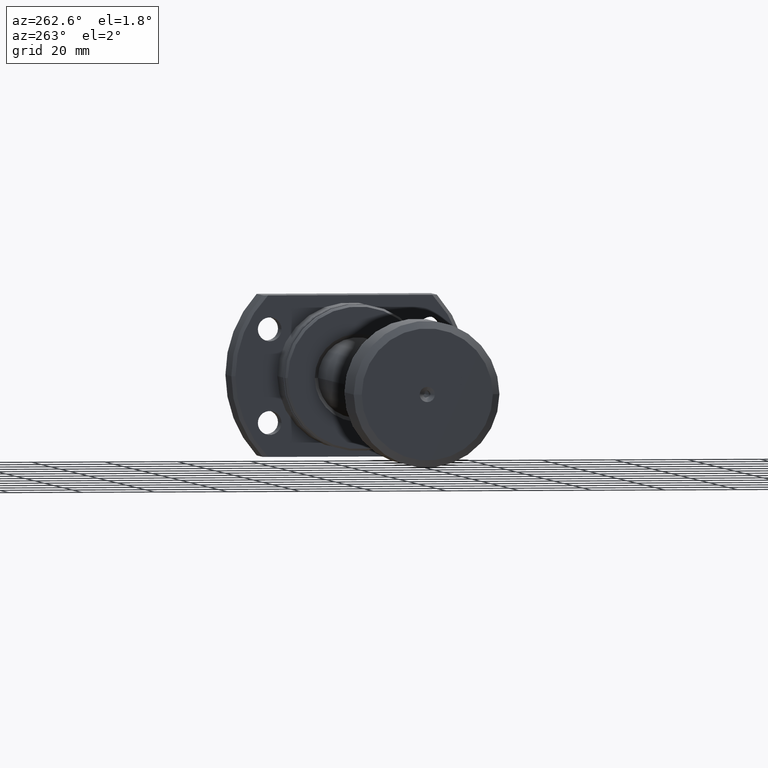
[diagram: clean part render]
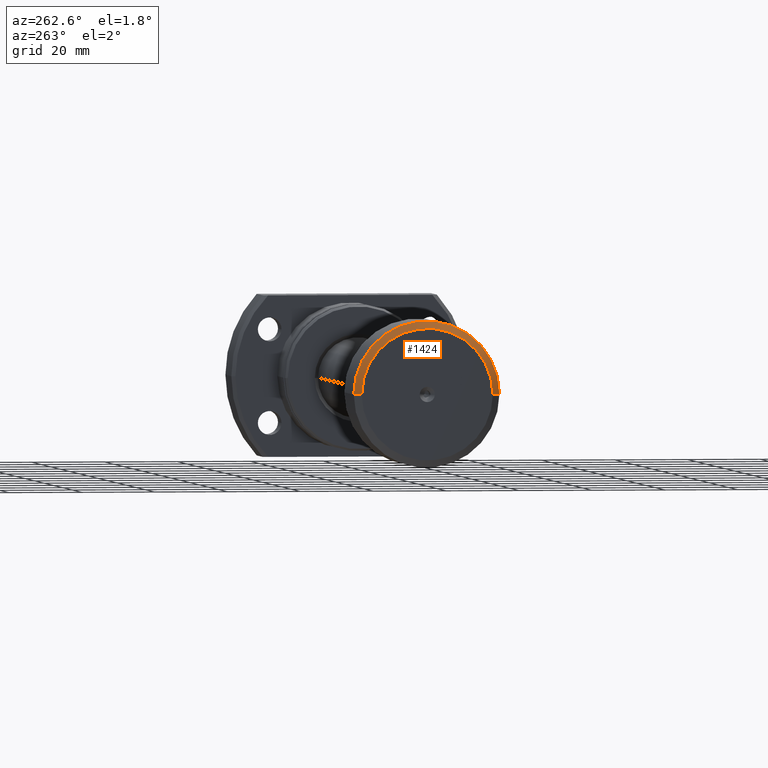
[diagram: same view with one face highlighted and labeled with its STEP entity id]
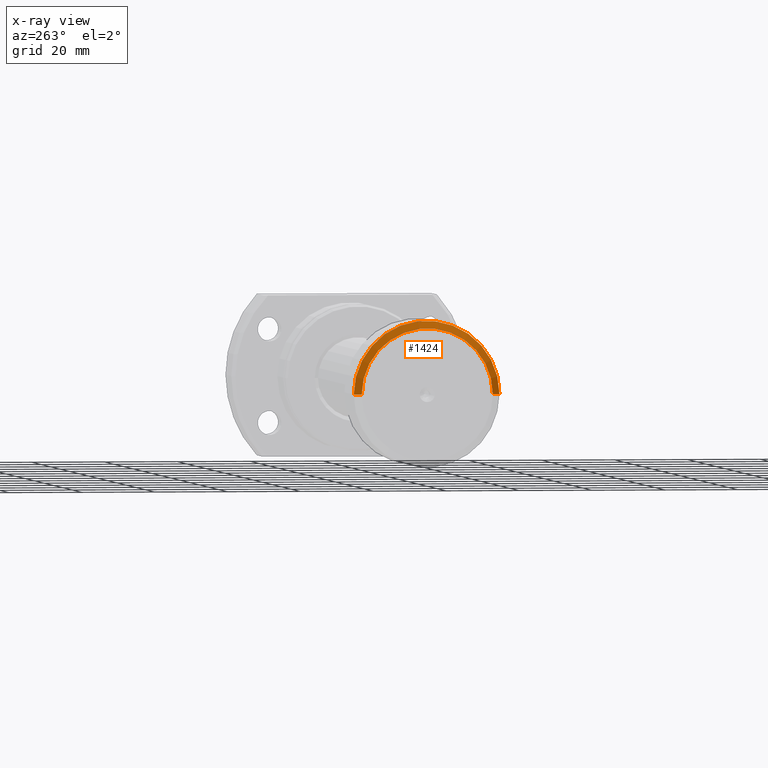
[diagram: x-ray of the same camera — body ghosted, the highlighted face saturated]
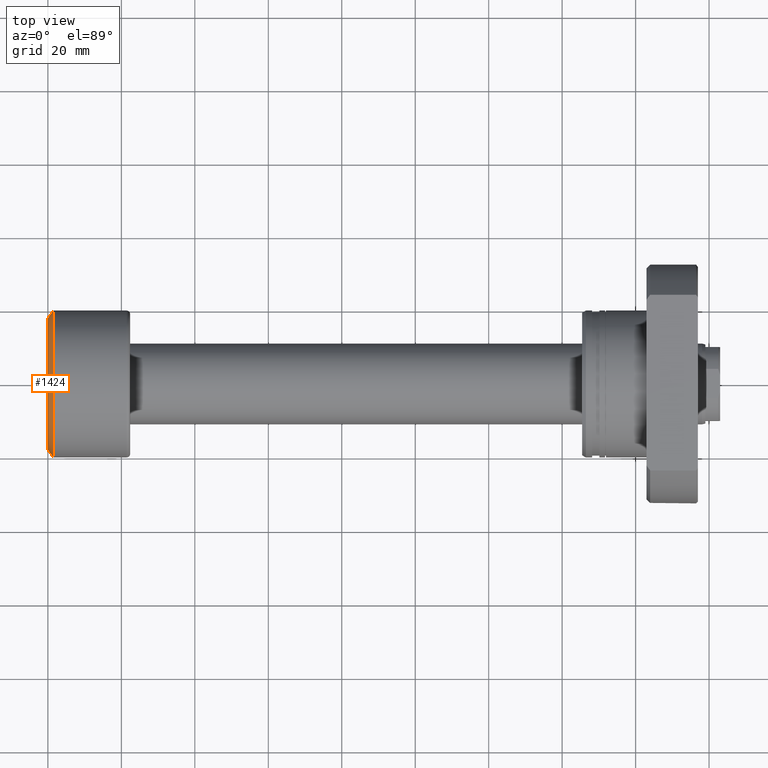
[diagram: same view with one face highlighted and labeled with its STEP entity id]
A machine part, auxiliary view. The second image highlights one B-rep face of the part: STEP entity #1424.
The next image is the same camera in x-ray: the body ghosted, the highlighted face saturated — about 0% of this face is hidden behind the body in this view.
A second angle (top view) of the same face is appended — the face is thin or edge-on in the first view.
In plain terms, the highlighted conical surface has half-angle 53.13 deg.
Its self-contained STEP definition (entity closure, byte-faithful):
#122 = CIRCLE ( 'NONE', #2906, 18.00000000000000355 ) ;
#176 = LINE ( 'NONE', #2869, #3136 ) ;
#244 = EDGE_CURVE ( 'NONE', #1519, #2376, #2145, .T. ) ;
#379 = EDGE_CURVE ( 'NONE', #894, #2419, #122, .T. ) ;
#620 = DIRECTION ( 'NONE',  ( 0.6000000000000005329, -0.7999999999999996003, 9.797174393178821220E-17 ) ) ;
#631 = ORIENTED_EDGE ( 'NONE', *, *, #910, .F. ) ;
#819 = CARTESIAN_POINT ( 'NONE',  ( 1.500000000000002442, 20.00000000000000000, 0.000000000000000000 ) ) ;
#843 = DIRECTION ( 'NONE',  ( 1.084202172485504434E-17, -1.000000000000000000, 0.000000000000000000 ) ) ;
#878 = CARTESIAN_POINT ( 'NONE',  ( 2.011846620492804129E-15, 2.151755106128676308E-32, 0.000000000000000000 ) ) ;
#894 = VERTEX_POINT ( 'NONE', #3130 ) ;
#910 = EDGE_CURVE ( 'NONE', #2419, #2376, #2718, .T. ) ;
#1004 = AXIS2_PLACEMENT_3D ( 'NONE', #2711, #1466, #1245 ) ;
#1168 = DIRECTION ( 'NONE',  ( -1.000000000000000000, -1.069542322069065801E-17, -0.000000000000000000 ) ) ;
#1224 = EDGE_CURVE ( 'NONE', #894, #1519, #176, .T. ) ;
#1245 = DIRECTION ( 'NONE',  ( -1.069542322069065647E-17, 1.000000000000000000, 0.000000000000000000 ) ) ;
#1262 = AXIS2_PLACEMENT_3D ( 'NONE', #2503, #2072, #843 ) ;
#1408 = ORIENTED_EDGE ( 'NONE', *, *, #244, .T. ) ;
#1424 = ADVANCED_FACE ( 'NONE', ( #1727 ), #1779, .T. ) ;
#1466 = DIRECTION ( 'NONE',  ( 1.000000000000000000, 1.069542322069065801E-17, 0.000000000000000000 ) ) ;
#1519 = VERTEX_POINT ( 'NONE', #2743 ) ;
#1543 = ORIENTED_EDGE ( 'NONE', *, *, #1224, .T. ) ;
#1727 = FACE_OUTER_BOUND ( 'NONE', #2475, .T. ) ;
#1779 = CONICAL_SURFACE ( 'NONE', #1004, 18.00000000000000355, 0.9272952180016115209 ) ;
#1849 = DIRECTION ( 'NONE',  ( 1.069542322069065647E-17, -1.000000000000000000, 0.000000000000000000 ) ) ;
#1979 = VECTOR ( 'NONE', #2703, 1000.000000000000000 ) ;
#2072 = DIRECTION ( 'NONE',  ( -1.000000000000000000, -1.069542322069065801E-17, -0.000000000000000000 ) ) ;
#2145 = CIRCLE ( 'NONE', #1262, 20.00000000000000000 ) ;
#2224 = CARTESIAN_POINT ( 'NONE',  ( 1.819329002520372041E-15, 18.00000000000000355, 0.000000000000000000 ) ) ;
#2376 = VERTEX_POINT ( 'NONE', #819 ) ;
#2419 = VERTEX_POINT ( 'NONE', #2738 ) ;
#2475 = EDGE_LOOP ( 'NONE', ( #3036, #1543, #1408, #631 ) ) ;
#2503 = CARTESIAN_POINT ( 'NONE',  ( 1.500000000000002442, 1.604313483103601552E-17, 0.000000000000000000 ) ) ;
#2703 = DIRECTION ( 'NONE',  ( 0.6000000000000005329, 0.7999999999999996003, 0.000000000000000000 ) ) ;
#2711 = CARTESIAN_POINT ( 'NONE',  ( 2.011846620492804129E-15, 2.151755106128676308E-32, 0.000000000000000000 ) ) ;
#2718 = LINE ( 'NONE', #2224, #1979 ) ;
#2738 = CARTESIAN_POINT ( 'NONE',  ( 1.819329002520372041E-15, 18.00000000000000355, 0.000000000000000000 ) ) ;
#2743 = CARTESIAN_POINT ( 'NONE',  ( 1.500000000000002887, -20.00000000000000000, 2.449293598294706513E-15 ) ) ;
#2869 = CARTESIAN_POINT ( 'NONE',  ( 2.204364238465235822E-15, -18.00000000000000355, 2.204364238465235822E-15 ) ) ;
#2906 = AXIS2_PLACEMENT_3D ( 'NONE', #878, #1168, #1849 ) ;
#3036 = ORIENTED_EDGE ( 'NONE', *, *, #379, .F. ) ;
#3130 = CARTESIAN_POINT ( 'NONE',  ( 2.204364238465235822E-15, -18.00000000000000355, 2.326828918379971365E-15 ) ) ;
#3136 = VECTOR ( 'NONE', #620, 1000.000000000000000 ) ;